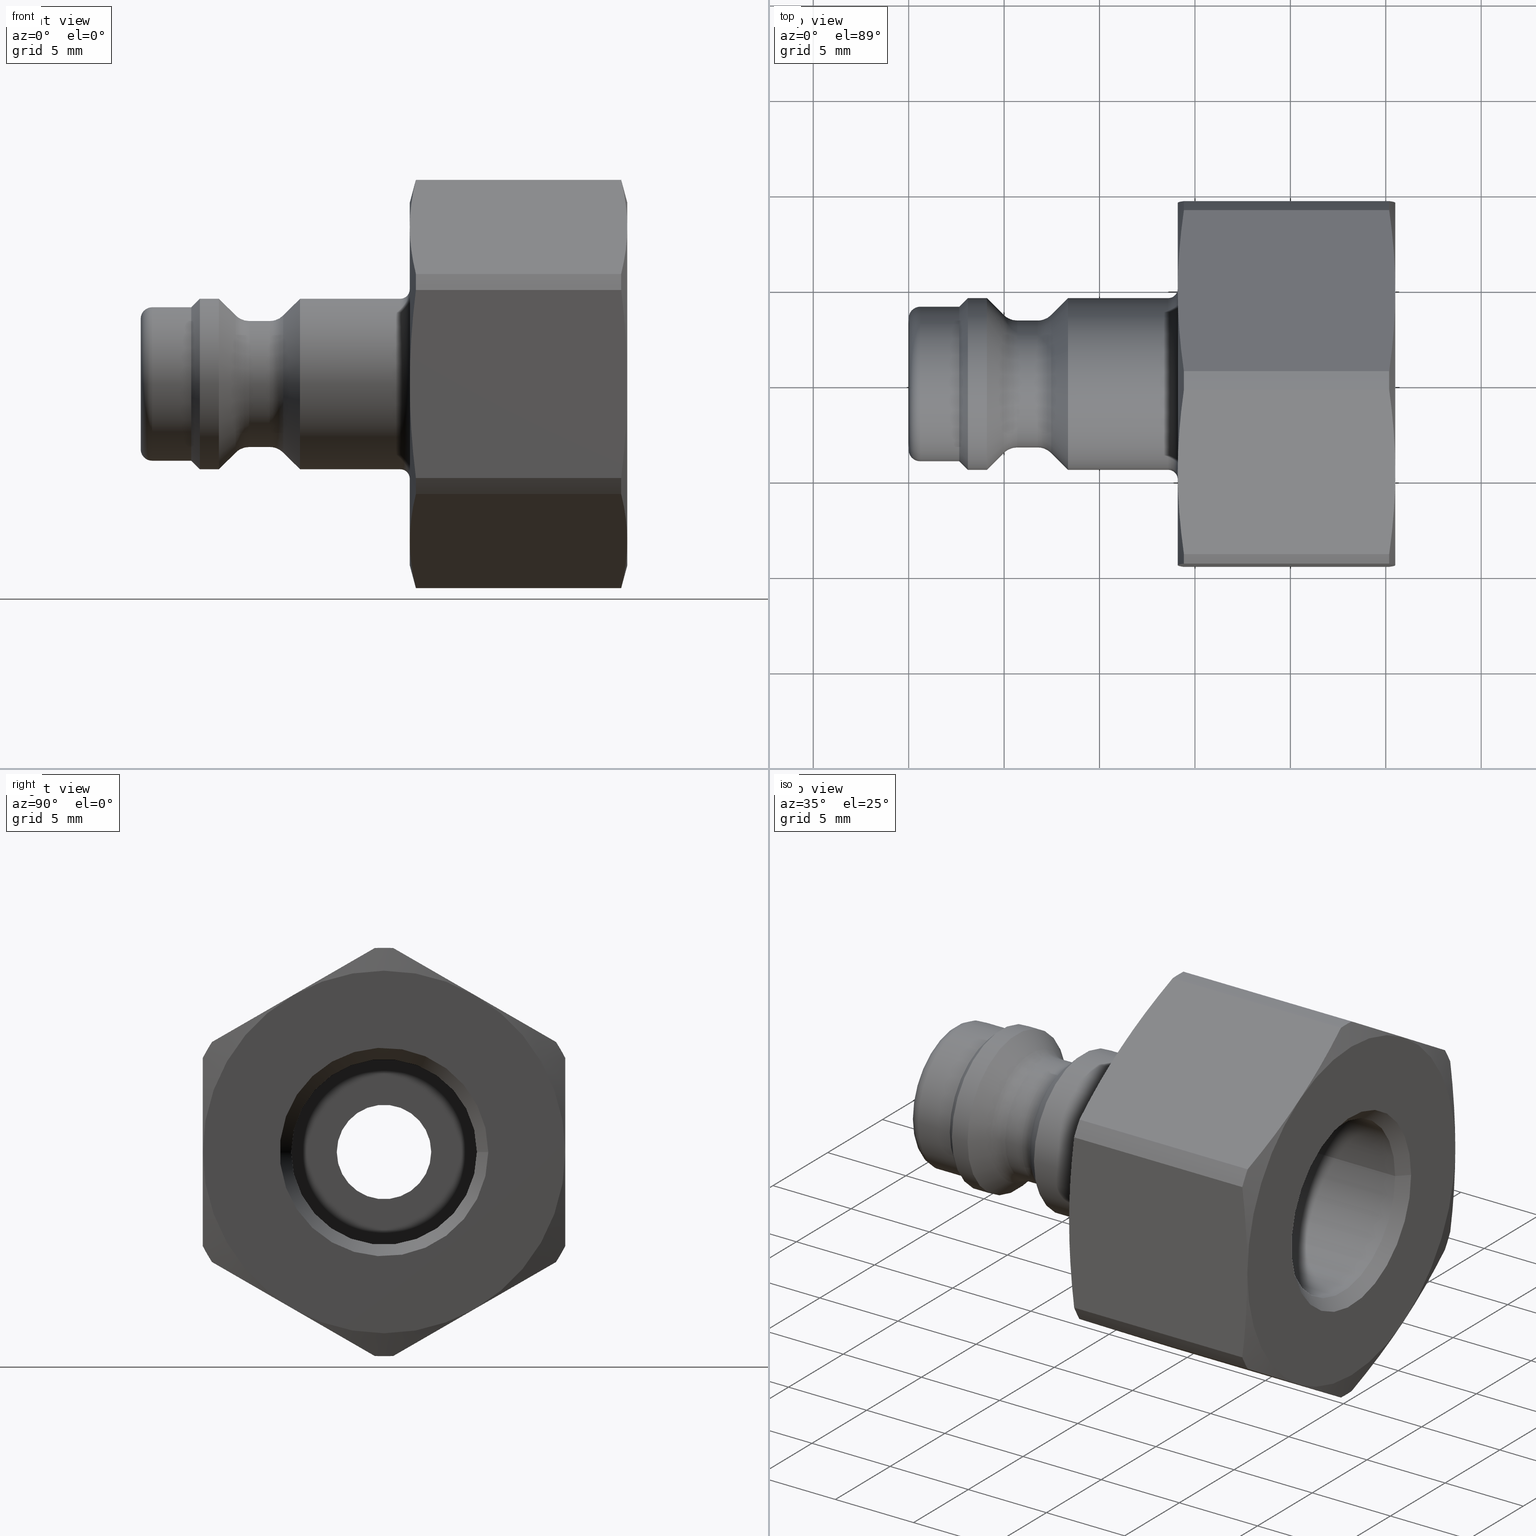
[diagram: canonical four-view strip — front | top / right | iso, engineering-drawing reading convention]
A machine part, canonical four-view strip (front | top / right | iso — engineering-drawing reading convention). The complete STEP part file that produces these views, byte-faithful:
ISO-10303-21;
HEADER;
/****************************************************************
 * Generated by software with PDElib inside                    *
 * PDElib Version v51a, created Wed 11/30/2011                  *
 * ITI Transcendata (http://www.transcendata.com/)              *
 ****************************************************************/
FILE_DESCRIPTION((''),'2;1');
FILE_NAME('J:\\003 3D Zeichnungen_step\\Serie 21\\21kaaw17mxx.stp','2014-10-16T09:42:42',('MS049480'),(''),'Autodesk Inventor 2013','Autodesk Inventor 2013','');
FILE_SCHEMA(('AUTOMOTIVE_DESIGN { 1 0 10303 214 1 1 1 1 }'));
ENDSEC;
DATA;
#5=APPLICATION_CONTEXT('automotive design');
#6=APPLICATION_PROTOCOL_DEFINITION('International Standard','automotive_design',2001,#5);
#7=PRODUCT_CONTEXT('',#5,'mechanical');
#8=PRODUCT('D112306','D112306',$,(#7));
#9=PRODUCT_RELATED_PRODUCT_CATEGORY('part',$,(#8));
#10=PRODUCT_DEFINITION_FORMATION('',$,#8);
#11=PRODUCT_DEFINITION_CONTEXT('part definition',#5,'design');
#12=PRODUCT_DEFINITION('',$,#10,#11);
#18=(NAMED_UNIT(*)PLANE_ANGLE_UNIT()SI_UNIT($,.RADIAN.));
#19=DIMENSIONAL_EXPONENTS(0.0,0.0,0.0,0.0,0.0,0.0,0.0);
#20=PLANE_ANGLE_MEASURE_WITH_UNIT(PLANE_ANGLE_MEASURE(0.0174532925),#18);
#24=(CONVERSION_BASED_UNIT('DEGREE',#20)NAMED_UNIT(#19)PLANE_ANGLE_UNIT());
#28=(NAMED_UNIT(*)SI_UNIT($,.STERADIAN.)SOLID_ANGLE_UNIT());
#32=(LENGTH_UNIT()NAMED_UNIT(*)SI_UNIT(.MILLI.,.METRE.));
#34=UNCERTAINTY_MEASURE_WITH_UNIT(LENGTH_MEASURE(0.01),#32,'DISTANCE_ACCURACY_VALUE','');
#36=(GEOMETRIC_REPRESENTATION_CONTEXT(3)GLOBAL_UNCERTAINTY_ASSIGNED_CONTEXT((#34))GLOBAL_UNIT_ASSIGNED_CONTEXT((#24,#28,#32))REPRESENTATION_CONTEXT('None','None'));
#37=AXIS2_PLACEMENT_3D('',#38,#39,#40);
#38=CARTESIAN_POINT('',(0.0,0.0,0.0));
#39=DIRECTION('',(0.0,0.0,1.0));
#40=DIRECTION('',(1.0,0.0,0.0));
#41=SHAPE_REPRESENTATION('',(#37),#36);
#42=PRODUCT_DEFINITION_SHAPE('','',#12);
#43=SHAPE_DEFINITION_REPRESENTATION(#42,#41);
#49=(NAMED_UNIT(*)PLANE_ANGLE_UNIT()SI_UNIT($,.RADIAN.));
#50=DIMENSIONAL_EXPONENTS(0.0,0.0,0.0,0.0,0.0,0.0,0.0);
#51=PLANE_ANGLE_MEASURE_WITH_UNIT(PLANE_ANGLE_MEASURE(0.0174532925),#49);
#55=(CONVERSION_BASED_UNIT('DEGREE',#51)NAMED_UNIT(#50)PLANE_ANGLE_UNIT());
#59=(NAMED_UNIT(*)SI_UNIT($,.STERADIAN.)SOLID_ANGLE_UNIT());
#63=(LENGTH_UNIT()NAMED_UNIT(*)SI_UNIT(.MILLI.,.METRE.));
#65=UNCERTAINTY_MEASURE_WITH_UNIT(LENGTH_MEASURE(0.000001),#63,'DISTANCE_ACCURACY_VALUE','');
#67=(GEOMETRIC_REPRESENTATION_CONTEXT(3)GLOBAL_UNCERTAINTY_ASSIGNED_CONTEXT((#65))GLOBAL_UNIT_ASSIGNED_CONTEXT((#55,#59,#63))REPRESENTATION_CONTEXT('','3D'));
#68=CARTESIAN_POINT('',(25.200000000000003,0.0,0.0));
#69=DIRECTION('',(1.0,0.0,0.0));
#70=DIRECTION('',(0.0,-1.0,0.0));
#71=AXIS2_PLACEMENT_3D('',#68,#69,#70);
#72=CONICAL_SURFACE('',#71,5.164,44.999999999999964);
#73=CARTESIAN_POINT('',(25.500000000000004,5.464,6.691470E-016));
#74=VERTEX_POINT('',#73);
#75=CARTESIAN_POINT('',(25.500000000000004,0.0,0.0));
#76=DIRECTION('',(1.0,0.0,0.0));
#77=DIRECTION('',(0.0,-1.0,0.0));
#78=AXIS2_PLACEMENT_3D('',#75,#76,#77);
#79=CIRCLE('',#78,5.464);
#80=EDGE_CURVE('',#74,#74,#79,.T.);
#81=ORIENTED_EDGE('',*,*,#80,.T.);
#82=EDGE_LOOP('',(#81));
#83=FACE_OUTER_BOUND('',#82,.T.);
#84=CARTESIAN_POINT('',(24.900000000000002,4.864,-5.956682E-016));
#85=VERTEX_POINT('',#84);
#86=CARTESIAN_POINT('',(24.900000000000002,0.0,0.0));
#87=DIRECTION('',(-1.0,0.0,0.0));
#88=DIRECTION('',(0.0,-1.0,0.0));
#89=AXIS2_PLACEMENT_3D('',#86,#87,#88);
#90=CIRCLE('',#89,4.864);
#91=EDGE_CURVE('',#85,#85,#90,.T.);
#92=ORIENTED_EDGE('',*,*,#91,.T.);
#93=EDGE_LOOP('',(#92));
#94=FACE_BOUND('',#93,.T.);
#95=ADVANCED_FACE('',(#83,#94),#72,.F.);
#96=CARTESIAN_POINT('',(25.500000000000004,7.182,0.0));
#97=DIRECTION('',(1.0,0.0,0.0));
#98=DIRECTION('',(0.0,0.0,-1.0));
#99=AXIS2_PLACEMENT_3D('',#96,#97,#98);
#100=PLANE('',#99);
#101=CARTESIAN_POINT('',(25.500000000000004,9.5,0.0));
#102=VERTEX_POINT('',#101);
#103=CARTESIAN_POINT('',(25.500000000000004,4.750000000000002,8.227241335952169));
#104=VERTEX_POINT('',#103);
#105=CARTESIAN_POINT('',(25.500000000000004,0.0,0.0));
#106=DIRECTION('',(1.0,0.0,0.0));
#107=DIRECTION('',(0.0,1.0,0.0));
#108=AXIS2_PLACEMENT_3D('',#105,#106,#107);
#109=CIRCLE('',#108,9.5);
#110=EDGE_CURVE('',#102,#104,#109,.T.);
#111=ORIENTED_EDGE('',*,*,#110,.T.);
#112=CARTESIAN_POINT('',(25.500000000000004,-4.749999999999998,8.22724133595217));
#113=VERTEX_POINT('',#112);
#114=CARTESIAN_POINT('',(25.500000000000004,0.0,0.0));
#115=DIRECTION('',(1.0,0.0,0.0));
#116=DIRECTION('',(0.0,1.0,0.0));
#117=AXIS2_PLACEMENT_3D('',#114,#115,#116);
#118=CIRCLE('',#117,9.5);
#119=EDGE_CURVE('',#104,#113,#118,.T.);
#120=ORIENTED_EDGE('',*,*,#119,.T.);
#121=CARTESIAN_POINT('',(25.500000000000004,-9.500000000000002,1.582068E-015));
#122=VERTEX_POINT('',#121);
#123=CARTESIAN_POINT('',(25.500000000000004,0.0,0.0));
#124=DIRECTION('',(1.0,0.0,0.0));
#125=DIRECTION('',(0.0,1.0,0.0));
#126=AXIS2_PLACEMENT_3D('',#123,#124,#125);
#127=CIRCLE('',#126,9.5);
#128=EDGE_CURVE('',#113,#122,#127,.T.);
#129=ORIENTED_EDGE('',*,*,#128,.T.);
#130=CARTESIAN_POINT('',(25.500000000000004,-4.750000000000005,-8.227241335952165));
#131=VERTEX_POINT('',#130);
#132=CARTESIAN_POINT('',(25.500000000000004,0.0,0.0));
#133=DIRECTION('',(1.0,0.0,0.0));
#134=DIRECTION('',(0.0,1.0,0.0));
#135=AXIS2_PLACEMENT_3D('',#132,#133,#134);
#136=CIRCLE('',#135,9.5);
#137=EDGE_CURVE('',#122,#131,#136,.T.);
#138=ORIENTED_EDGE('',*,*,#137,.T.);
#139=CARTESIAN_POINT('',(25.500000000000004,4.749999999999993,-8.227241335952172));
#140=VERTEX_POINT('',#139);
#141=CARTESIAN_POINT('',(25.500000000000004,0.0,0.0));
#142=DIRECTION('',(1.0,0.0,0.0));
#143=DIRECTION('',(0.0,1.0,0.0));
#144=AXIS2_PLACEMENT_3D('',#141,#142,#143);
#145=CIRCLE('',#144,9.5);
#146=EDGE_CURVE('',#131,#140,#145,.T.);
#147=ORIENTED_EDGE('',*,*,#146,.T.);
#148=CARTESIAN_POINT('',(25.500000000000004,0.0,0.0));
#149=DIRECTION('',(1.0,0.0,0.0));
#150=DIRECTION('',(0.0,1.0,0.0));
#151=AXIS2_PLACEMENT_3D('',#148,#149,#150);
#152=CIRCLE('',#151,9.5);
#153=EDGE_CURVE('',#140,#102,#152,.T.);
#154=ORIENTED_EDGE('',*,*,#153,.T.);
#155=EDGE_LOOP('',(#111,#120,#129,#138,#147,#154));
#156=FACE_OUTER_BOUND('',#155,.T.);
#157=ORIENTED_EDGE('',*,*,#80,.F.);
#158=EDGE_LOOP('',(#157));
#159=FACE_BOUND('',#158,.T.);
#160=ADVANCED_FACE('',(#156,#159),#100,.T.);
#161=CARTESIAN_POINT('',(21.000000000000007,0.0,0.0));
#162=DIRECTION('',(1.0,0.0,0.0));
#163=DIRECTION('',(0.0,1.0,0.0));
#164=AXIS2_PLACEMENT_3D('',#161,#162,#163);
#165=CYLINDRICAL_SURFACE('',#164,4.864);
#166=CARTESIAN_POINT('',(16.500000000000004,4.863999999999999,0.0));
#167=VERTEX_POINT('',#166);
#168=CARTESIAN_POINT('',(16.500000000000004,0.0,0.0));
#169=DIRECTION('',(1.0,0.0,0.0));
#170=DIRECTION('',(0.0,1.0,0.0));
#171=AXIS2_PLACEMENT_3D('',#168,#169,#170);
#172=CIRCLE('',#171,4.863999999999999);
#173=EDGE_CURVE('',#167,#167,#172,.T.);
#174=ORIENTED_EDGE('',*,*,#173,.F.);
#175=EDGE_LOOP('',(#174));
#176=FACE_OUTER_BOUND('',#175,.T.);
#177=ORIENTED_EDGE('',*,*,#91,.F.);
#178=EDGE_LOOP('',(#177));
#179=FACE_BOUND('',#178,.T.);
#180=ADVANCED_FACE('',(#176,#179),#165,.F.);
#181=CARTESIAN_POINT('',(5.689213562373095,0.0,0.0));
#182=DIRECTION('',(1.0,0.0,0.0));
#183=DIRECTION('',(0.0,0.0,-1.0));
#184=AXIS2_PLACEMENT_3D('',#181,#182,#183);
#185=TOROIDAL_SURFACE('',#184,4.325,1.0);
#186=CARTESIAN_POINT('',(4.982106781186548,3.617893218813451,-1.232595E-031));
#187=VERTEX_POINT('',#186);
#188=CARTESIAN_POINT('',(4.982106781186548,0.0,-4.430641E-016));
#189=DIRECTION('',(1.0,0.0,0.0));
#190=DIRECTION('',(0.0,-1.0,0.0));
#191=AXIS2_PLACEMENT_3D('',#188,#189,#190);
#192=CIRCLE('',#191,3.617893218813451);
#193=EDGE_CURVE('',#187,#187,#192,.T.);
#194=ORIENTED_EDGE('',*,*,#193,.T.);
#195=EDGE_LOOP('',(#194));
#196=FACE_OUTER_BOUND('',#195,.T.);
#197=CARTESIAN_POINT('',(5.689213562373095,3.325,-8.143901E-016));
#198=VERTEX_POINT('',#197);
#199=CARTESIAN_POINT('',(5.689213562373095,0.0,0.0));
#200=DIRECTION('',(-1.0,0.0,0.0));
#201=DIRECTION('',(0.0,-1.0,0.0));
#202=AXIS2_PLACEMENT_3D('',#199,#200,#201);
#203=CIRCLE('',#202,3.325);
#204=EDGE_CURVE('',#198,#198,#203,.T.);
#205=ORIENTED_EDGE('',*,*,#204,.T.);
#206=EDGE_LOOP('',(#205));
#207=FACE_BOUND('',#206,.T.);
#208=ADVANCED_FACE('',(#196,#207),#185,.F.);
#209=CARTESIAN_POINT('',(6.225000000000001,0.0,0.0));
#210=DIRECTION('',(1.0,0.0,0.0));
#211=DIRECTION('',(0.0,1.0,0.0));
#212=AXIS2_PLACEMENT_3D('',#209,#210,#211);
#213=CYLINDRICAL_SURFACE('',#212,3.325);
#214=CARTESIAN_POINT('',(6.760786437626905,3.325,0.0));
#215=VERTEX_POINT('',#214);
#216=CARTESIAN_POINT('',(6.760786437626905,0.0,0.0));
#217=DIRECTION('',(1.0,0.0,0.0));
#218=DIRECTION('',(0.0,-1.0,0.0));
#219=AXIS2_PLACEMENT_3D('',#216,#217,#218);
#220=CIRCLE('',#219,3.325);
#221=EDGE_CURVE('',#215,#215,#220,.T.);
#222=ORIENTED_EDGE('',*,*,#221,.F.);
#223=EDGE_LOOP('',(#222));
#224=FACE_OUTER_BOUND('',#223,.T.);
#225=ORIENTED_EDGE('',*,*,#204,.F.);
#226=EDGE_LOOP('',(#225));
#227=FACE_BOUND('',#226,.T.);
#228=ADVANCED_FACE('',(#224,#227),#213,.T.);
#229=CARTESIAN_POINT('',(4.6875,0.0,0.0));
#230=DIRECTION('',(-1.0,0.0,0.0));
#231=DIRECTION('',(0.0,1.0,0.0));
#232=AXIS2_PLACEMENT_3D('',#229,#230,#231);
#233=CONICAL_SURFACE('',#232,3.9125,44.999999999999979);
#234=CARTESIAN_POINT('',(4.1,4.5,0.0));
#235=VERTEX_POINT('',#234);
#236=CARTESIAN_POINT('',(4.1,0.0,0.0));
#237=DIRECTION('',(1.0,0.0,0.0));
#238=DIRECTION('',(0.0,1.0,0.0));
#239=AXIS2_PLACEMENT_3D('',#236,#237,#238);
#240=CIRCLE('',#239,4.5);
#241=EDGE_CURVE('',#235,#235,#240,.T.);
#242=ORIENTED_EDGE('',*,*,#241,.T.);
#243=EDGE_LOOP('',(#242));
#244=FACE_OUTER_BOUND('',#243,.T.);
#245=ORIENTED_EDGE('',*,*,#193,.F.);
#246=EDGE_LOOP('',(#245));
#247=FACE_BOUND('',#246,.T.);
#248=ADVANCED_FACE('',(#244,#247),#233,.T.);
#249=CARTESIAN_POINT('',(6.760786437626905,0.0,0.0));
#250=DIRECTION('',(1.0,0.0,0.0));
#251=DIRECTION('',(0.0,0.0,-1.0));
#252=AXIS2_PLACEMENT_3D('',#249,#250,#251);
#253=TOROIDAL_SURFACE('',#252,4.325,1.0);
#254=ORIENTED_EDGE('',*,*,#221,.T.);
#255=EDGE_LOOP('',(#254));
#256=FACE_OUTER_BOUND('',#255,.T.);
#257=CARTESIAN_POINT('',(7.467893218813453,3.617893218813453,-8.861283E-016));
#258=VERTEX_POINT('',#257);
#259=CARTESIAN_POINT('',(7.467893218813453,0.0,-4.430641E-016));
#260=DIRECTION('',(-1.0,0.0,0.0));
#261=DIRECTION('',(0.0,-1.0,0.0));
#262=AXIS2_PLACEMENT_3D('',#259,#260,#261);
#263=CIRCLE('',#262,3.617893218813453);
#264=EDGE_CURVE('',#258,#258,#263,.T.);
#265=ORIENTED_EDGE('',*,*,#264,.T.);
#266=EDGE_LOOP('',(#265));
#267=FACE_BOUND('',#266,.T.);
#268=ADVANCED_FACE('',(#256,#267),#253,.F.);
#269=CARTESIAN_POINT('',(7.762499999999999,0.0,0.0));
#270=DIRECTION('',(1.0,0.0,0.0));
#271=DIRECTION('',(0.0,1.0,0.0));
#272=AXIS2_PLACEMENT_3D('',#269,#270,#271);
#273=CONICAL_SURFACE('',#272,3.9125,45.000000000000057);
#274=CARTESIAN_POINT('',(8.349999999999998,4.5,0.0));
#275=VERTEX_POINT('',#274);
#276=CARTESIAN_POINT('',(8.349999999999998,0.0,0.0));
#277=DIRECTION('',(1.0,0.0,0.0));
#278=DIRECTION('',(0.0,1.0,0.0));
#279=AXIS2_PLACEMENT_3D('',#276,#277,#278);
#280=CIRCLE('',#279,4.5);
#281=EDGE_CURVE('',#275,#275,#280,.T.);
#282=ORIENTED_EDGE('',*,*,#281,.F.);
#283=EDGE_LOOP('',(#282));
#284=FACE_OUTER_BOUND('',#283,.T.);
#285=ORIENTED_EDGE('',*,*,#264,.F.);
#286=EDGE_LOOP('',(#285));
#287=FACE_BOUND('',#286,.T.);
#288=ADVANCED_FACE('',(#284,#287),#273,.T.);
#289=CARTESIAN_POINT('',(0.6,0.0,0.0));
#290=DIRECTION('',(1.0,0.0,0.0));
#291=DIRECTION('',(0.0,0.0,-1.0));
#292=AXIS2_PLACEMENT_3D('',#289,#290,#291);
#293=TOROIDAL_SURFACE('',#292,3.45,0.6);
#294=CARTESIAN_POINT('',(0.0,3.45,0.0));
#295=VERTEX_POINT('',#294);
#296=CARTESIAN_POINT('',(0.0,0.0,0.0));
#297=DIRECTION('',(1.0,0.0,0.0));
#298=DIRECTION('',(0.0,-1.0,0.0));
#299=AXIS2_PLACEMENT_3D('',#296,#297,#298);
#300=CIRCLE('',#299,3.45);
#301=EDGE_CURVE('',#295,#295,#300,.T.);
#302=ORIENTED_EDGE('',*,*,#301,.T.);
#303=EDGE_LOOP('',(#302));
#304=FACE_OUTER_BOUND('',#303,.T.);
#305=CARTESIAN_POINT('',(0.6,4.050000000000001,-9.919639E-016));
#306=VERTEX_POINT('',#305);
#307=CARTESIAN_POINT('',(0.6,0.0,0.0));
#308=DIRECTION('',(-1.0,0.0,0.0));
#309=DIRECTION('',(0.0,-1.0,0.0));
#310=AXIS2_PLACEMENT_3D('',#307,#308,#309);
#311=CIRCLE('',#310,4.050000000000001);
#312=EDGE_CURVE('',#306,#306,#311,.T.);
#313=ORIENTED_EDGE('',*,*,#312,.T.);
#314=EDGE_LOOP('',(#313));
#315=FACE_BOUND('',#314,.T.);
#316=ADVANCED_FACE('',(#304,#315),#293,.T.);
#317=CARTESIAN_POINT('',(1.325,0.0,0.0));
#318=DIRECTION('',(1.0,0.0,0.0));
#319=DIRECTION('',(0.0,1.0,0.0));
#320=AXIS2_PLACEMENT_3D('',#317,#318,#319);
#321=CYLINDRICAL_SURFACE('',#320,4.050000000000001);
#322=CARTESIAN_POINT('',(2.65,4.050000000000001,0.0));
#323=VERTEX_POINT('',#322);
#324=CARTESIAN_POINT('',(2.65,0.0,0.0));
#325=DIRECTION('',(1.0,0.0,0.0));
#326=DIRECTION('',(0.0,1.0,0.0));
#327=AXIS2_PLACEMENT_3D('',#324,#325,#326);
#328=CIRCLE('',#327,4.050000000000001);
#329=EDGE_CURVE('',#323,#323,#328,.T.);
#330=ORIENTED_EDGE('',*,*,#329,.F.);
#331=EDGE_LOOP('',(#330));
#332=FACE_OUTER_BOUND('',#331,.T.);
#333=ORIENTED_EDGE('',*,*,#312,.F.);
#334=EDGE_LOOP('',(#333));
#335=FACE_BOUND('',#334,.T.);
#336=ADVANCED_FACE('',(#332,#335),#321,.T.);
#337=CARTESIAN_POINT('',(0.0,3.262499999999999,0.0));
#338=DIRECTION('',(-1.0,0.0,0.0));
#339=DIRECTION('',(0.0,0.0,1.0));
#340=AXIS2_PLACEMENT_3D('',#337,#338,#339);
#341=PLANE('',#340);
#342=ORIENTED_EDGE('',*,*,#301,.F.);
#343=EDGE_LOOP('',(#342));
#344=FACE_OUTER_BOUND('',#343,.T.);
#345=CARTESIAN_POINT('',(0.0,2.474999999999999,0.0));
#346=VERTEX_POINT('',#345);
#347=CARTESIAN_POINT('',(0.0,0.0,0.0));
#348=DIRECTION('',(1.0,0.0,0.0));
#349=DIRECTION('',(0.0,1.0,0.0));
#350=AXIS2_PLACEMENT_3D('',#347,#348,#349);
#351=CIRCLE('',#350,2.474999999999999);
#352=EDGE_CURVE('',#346,#346,#351,.T.);
#353=ORIENTED_EDGE('',*,*,#352,.T.);
#354=EDGE_LOOP('',(#353));
#355=FACE_BOUND('',#354,.T.);
#356=ADVANCED_FACE('',(#344,#355),#341,.T.);
#357=CARTESIAN_POINT('',(13.600000000000001,0.0,0.0));
#358=DIRECTION('',(1.0,0.0,0.0));
#359=DIRECTION('',(0.0,0.0,-1.0));
#360=AXIS2_PLACEMENT_3D('',#357,#358,#359);
#361=TOROIDAL_SURFACE('',#360,5.0,0.5);
#362=CARTESIAN_POINT('',(13.600000000000001,4.5,0.0));
#363=VERTEX_POINT('',#362);
#364=CARTESIAN_POINT('',(13.600000000000001,0.0,0.0));
#365=DIRECTION('',(1.0,0.0,0.0));
#366=DIRECTION('',(0.0,-1.0,0.0));
#367=AXIS2_PLACEMENT_3D('',#364,#365,#366);
#368=CIRCLE('',#367,4.5);
#369=EDGE_CURVE('',#363,#363,#368,.T.);
#370=ORIENTED_EDGE('',*,*,#369,.T.);
#371=EDGE_LOOP('',(#370));
#372=FACE_OUTER_BOUND('',#371,.T.);
#373=CARTESIAN_POINT('',(14.100000000000001,5.0,-1.224647E-015));
#374=VERTEX_POINT('',#373);
#375=CARTESIAN_POINT('',(14.100000000000001,0.0,0.0));
#376=DIRECTION('',(-1.0,0.0,0.0));
#377=DIRECTION('',(0.0,-1.0,0.0));
#378=AXIS2_PLACEMENT_3D('',#375,#376,#377);
#379=CIRCLE('',#378,5.0);
#380=EDGE_CURVE('',#374,#374,#379,.T.);
#381=ORIENTED_EDGE('',*,*,#380,.T.);
#382=EDGE_LOOP('',(#381));
#383=FACE_BOUND('',#382,.T.);
#384=ADVANCED_FACE('',(#372,#383),#361,.F.);
#385=CARTESIAN_POINT('',(11.225000000000001,0.0,0.0));
#386=DIRECTION('',(1.0,0.0,0.0));
#387=DIRECTION('',(0.0,1.0,0.0));
#388=AXIS2_PLACEMENT_3D('',#385,#386,#387);
#389=CYLINDRICAL_SURFACE('',#388,4.5);
#390=ORIENTED_EDGE('',*,*,#281,.T.);
#391=EDGE_LOOP('',(#390));
#392=FACE_OUTER_BOUND('',#391,.T.);
#393=ORIENTED_EDGE('',*,*,#369,.F.);
#394=EDGE_LOOP('',(#393));
#395=FACE_BOUND('',#394,.T.);
#396=ADVANCED_FACE('',(#392,#395),#389,.T.);
#397=CARTESIAN_POINT('',(14.100000000000001,7.000000000000001,0.0));
#398=DIRECTION('',(-1.0,0.0,0.0));
#399=DIRECTION('',(0.0,0.0,1.0));
#400=AXIS2_PLACEMENT_3D('',#397,#398,#399);
#401=PLANE('',#400);
#402=CARTESIAN_POINT('',(14.100000000000001,9.5,0.0));
#403=VERTEX_POINT('',#402);
#404=CARTESIAN_POINT('',(14.1,4.750000000000002,8.227241335952167));
#405=VERTEX_POINT('',#404);
#406=CARTESIAN_POINT('',(14.100000000000001,0.0,0.0));
#407=DIRECTION('',(1.0,0.0,0.0));
#408=DIRECTION('',(0.0,1.0,0.0));
#409=AXIS2_PLACEMENT_3D('',#406,#407,#408);
#410=CIRCLE('',#409,9.5);
#411=EDGE_CURVE('',#403,#405,#410,.T.);
#412=ORIENTED_EDGE('',*,*,#411,.F.);
#413=CARTESIAN_POINT('',(14.1,4.749999999999993,-8.227241335952172));
#414=VERTEX_POINT('',#413);
#415=CARTESIAN_POINT('',(14.100000000000001,0.0,0.0));
#416=DIRECTION('',(1.0,0.0,0.0));
#417=DIRECTION('',(0.0,1.0,0.0));
#418=AXIS2_PLACEMENT_3D('',#415,#416,#417);
#419=CIRCLE('',#418,9.5);
#420=EDGE_CURVE('',#414,#403,#419,.T.);
#421=ORIENTED_EDGE('',*,*,#420,.F.);
#422=CARTESIAN_POINT('',(14.1,-4.750000000000004,-8.227241335952165));
#423=VERTEX_POINT('',#422);
#424=CARTESIAN_POINT('',(14.100000000000001,0.0,0.0));
#425=DIRECTION('',(1.0,0.0,0.0));
#426=DIRECTION('',(0.0,1.0,0.0));
#427=AXIS2_PLACEMENT_3D('',#424,#425,#426);
#428=CIRCLE('',#427,9.5);
#429=EDGE_CURVE('',#423,#414,#428,.T.);
#430=ORIENTED_EDGE('',*,*,#429,.F.);
#431=CARTESIAN_POINT('',(14.1,-9.5,1.582068E-015));
#432=VERTEX_POINT('',#431);
#433=CARTESIAN_POINT('',(14.100000000000001,0.0,0.0));
#434=DIRECTION('',(1.0,0.0,0.0));
#435=DIRECTION('',(0.0,1.0,0.0));
#436=AXIS2_PLACEMENT_3D('',#433,#434,#435);
#437=CIRCLE('',#436,9.5);
#438=EDGE_CURVE('',#432,#423,#437,.T.);
#439=ORIENTED_EDGE('',*,*,#438,.F.);
#440=CARTESIAN_POINT('',(14.1,-4.749999999999998,8.227241335952169));
#441=VERTEX_POINT('',#440);
#442=CARTESIAN_POINT('',(14.100000000000001,0.0,0.0));
#443=DIRECTION('',(1.0,0.0,0.0));
#444=DIRECTION('',(0.0,1.0,0.0));
#445=AXIS2_PLACEMENT_3D('',#442,#443,#444);
#446=CIRCLE('',#445,9.5);
#447=EDGE_CURVE('',#441,#432,#446,.T.);
#448=ORIENTED_EDGE('',*,*,#447,.F.);
#449=CARTESIAN_POINT('',(14.100000000000001,0.0,0.0));
#450=DIRECTION('',(1.0,0.0,0.0));
#451=DIRECTION('',(0.0,1.0,0.0));
#452=AXIS2_PLACEMENT_3D('',#449,#450,#451);
#453=CIRCLE('',#452,9.5);
#454=EDGE_CURVE('',#405,#441,#453,.T.);
#455=ORIENTED_EDGE('',*,*,#454,.F.);
#456=EDGE_LOOP('',(#412,#421,#430,#439,#448,#455));
#457=FACE_OUTER_BOUND('',#456,.T.);
#458=ORIENTED_EDGE('',*,*,#380,.F.);
#459=EDGE_LOOP('',(#458));
#460=FACE_BOUND('',#459,.T.);
#461=ADVANCED_FACE('',(#457,#460),#401,.T.);
#462=CARTESIAN_POINT('',(27.350283426595773,4.749999999999995,-8.227241335952174));
#463=DIRECTION('',(1.448150E-016,-0.499999999999999,0.866025403784439));
#464=DIRECTION('',(8.038848E-033,-0.866025403784439,-0.499999999999999));
#465=AXIS2_PLACEMENT_3D('',#462,#463,#464);
#466=PLANE('',#465);
#467=CARTESIAN_POINT('',(14.421539030917344,9.013801121065562,-5.765534610933942));
#468=VERTEX_POINT('',#467);
#469=CARTESIAN_POINT('',(14.421539030917348,9.013801121065551,-5.765534610933949));
#470=CARTESIAN_POINT('',(14.100000000000009,6.75525300248137,-7.069507975176247));
#471=CARTESIAN_POINT('',(14.100000000000003,4.749999999999993,-8.227241335952172));
#479=(BOUNDED_CURVE()B_SPLINE_CURVE(2,(#469,#470,#471),.UNSPECIFIED.,.F.,.U.)B_SPLINE_CURVE_WITH_KNOTS((3,3),(0.0,0.493628243022413),.UNSPECIFIED.)CURVE()GEOMETRIC_REPRESENTATION_ITEM()RATIONAL_B_SPLINE_CURVE((1.0,1.031095482841852,1.0))REPRESENTATION_ITEM(''));
#480=EDGE_CURVE('',#468,#414,#479,.T.);
#481=ORIENTED_EDGE('',*,*,#480,.F.);
#482=CARTESIAN_POINT('',(25.178460969082657,9.013801121065562,-5.765534610933943));
#483=VERTEX_POINT('',#482);
#484=CARTESIAN_POINT('',(25.178460969082657,9.013801121065562,-5.765534610933942));
#485=DIRECTION('',(-1.0,0.0,0.0));
#486=VECTOR('',#485,10.756921938165313);
#487=LINE('',#484,#486);
#488=EDGE_CURVE('',#483,#468,#487,.T.);
#489=ORIENTED_EDGE('',*,*,#488,.F.);
#490=CARTESIAN_POINT('',(25.5,4.749999999999995,-8.227241335952174));
#491=CARTESIAN_POINT('',(25.5,6.755253002481345,-7.069507975176263));
#492=CARTESIAN_POINT('',(25.178460969082657,9.013801121065542,-5.765534610933956));
#500=(BOUNDED_CURVE()B_SPLINE_CURVE(2,(#490,#491,#492),.UNSPECIFIED.,.F.,.U.)B_SPLINE_CURVE_WITH_KNOTS((3,3),(0.493628243022412,0.987256486044823),.UNSPECIFIED.)CURVE()GEOMETRIC_REPRESENTATION_ITEM()RATIONAL_B_SPLINE_CURVE((1.0,1.03109548284183,1.0))REPRESENTATION_ITEM(''));
#501=EDGE_CURVE('',#140,#483,#500,.T.);
#502=ORIENTED_EDGE('',*,*,#501,.F.);
#503=CARTESIAN_POINT('',(25.178460969082657,0.486198878934424,-10.688948060970402));
#504=VERTEX_POINT('',#503);
#505=CARTESIAN_POINT('',(25.178460969082657,0.486198878934444,-10.688948060970391));
#506=CARTESIAN_POINT('',(25.5,2.744746997518635,-9.384974696728088));
#507=CARTESIAN_POINT('',(25.5,4.749999999999995,-8.227241335952174));
#515=(BOUNDED_CURVE()B_SPLINE_CURVE(2,(#505,#506,#507),.UNSPECIFIED.,.F.,.U.)B_SPLINE_CURVE_WITH_KNOTS((3,3),(0.0,0.493628243022412),.UNSPECIFIED.)CURVE()GEOMETRIC_REPRESENTATION_ITEM()RATIONAL_B_SPLINE_CURVE((1.0,1.031095482841819,1.0))REPRESENTATION_ITEM(''));
#516=EDGE_CURVE('',#504,#140,#515,.T.);
#517=ORIENTED_EDGE('',*,*,#516,.F.);
#518=CARTESIAN_POINT('',(14.421539030917344,0.486198878934425,-10.6889480609704));
#519=VERTEX_POINT('',#518);
#520=CARTESIAN_POINT('',(14.421539030917344,0.486198878934425,-10.6889480609704));
#521=DIRECTION('',(1.0,0.0,0.0));
#522=VECTOR('',#521,10.756921938165313);
#523=LINE('',#520,#522);
#524=EDGE_CURVE('',#519,#504,#523,.T.);
#525=ORIENTED_EDGE('',*,*,#524,.F.);
#526=CARTESIAN_POINT('',(14.100000000000003,4.749999999999993,-8.227241335952172));
#527=CARTESIAN_POINT('',(14.1,2.744746997518624,-9.384974696728092));
#528=CARTESIAN_POINT('',(14.421539030917348,0.486198878934435,-10.688948060970397));
#536=(BOUNDED_CURVE()B_SPLINE_CURVE(2,(#526,#527,#528),.UNSPECIFIED.,.F.,.U.)B_SPLINE_CURVE_WITH_KNOTS((3,3),(0.493628243022413,0.987256486044826),.UNSPECIFIED.)CURVE()GEOMETRIC_REPRESENTATION_ITEM()RATIONAL_B_SPLINE_CURVE((1.0,1.031095482841857,1.0))REPRESENTATION_ITEM(''));
#537=EDGE_CURVE('',#414,#519,#536,.T.);
#538=ORIENTED_EDGE('',*,*,#537,.F.);
#539=EDGE_LOOP('',(#481,#489,#502,#517,#525,#538));
#540=FACE_OUTER_BOUND('',#539,.T.);
#541=ADVANCED_FACE('',(#540),#466,.F.);
#542=CARTESIAN_POINT('',(27.350283426595773,-4.750000000000005,-8.227241335952165));
#543=DIRECTION('',(1.448150E-016,0.5,0.866025403784438));
#544=DIRECTION('',(0.0,-0.866025403784438,0.5));
#545=AXIS2_PLACEMENT_3D('',#542,#543,#544);
#546=PLANE('',#545);
#547=CARTESIAN_POINT('',(14.421539030917344,-0.48619887893444,-10.6889480609704));
#548=VERTEX_POINT('',#547);
#549=CARTESIAN_POINT('',(14.421539030917348,-0.486198878934446,-10.688948060970393));
#550=CARTESIAN_POINT('',(14.100000000000001,-2.744746997518692,-9.384974696728056));
#551=CARTESIAN_POINT('',(14.100000000000001,-4.750000000000004,-8.227241335952163));
#559=(BOUNDED_CURVE()B_SPLINE_CURVE(2,(#549,#550,#551),.UNSPECIFIED.,.F.,.U.)B_SPLINE_CURVE_WITH_KNOTS((3,3),(0.0,0.493628243022413),.UNSPECIFIED.)CURVE()GEOMETRIC_REPRESENTATION_ITEM()RATIONAL_B_SPLINE_CURVE((1.0,1.031095482841863,1.0))REPRESENTATION_ITEM(''));
#560=EDGE_CURVE('',#548,#423,#559,.T.);
#561=ORIENTED_EDGE('',*,*,#560,.F.);
#562=CARTESIAN_POINT('',(25.178460969082657,-0.48619887893444,-10.6889480609704));
#563=VERTEX_POINT('',#562);
#564=CARTESIAN_POINT('',(25.178460969082657,-0.486198878934442,-10.688948060970398));
#565=DIRECTION('',(-1.0,0.0,0.0));
#566=VECTOR('',#565,10.756921938165313);
#567=LINE('',#564,#566);
#568=EDGE_CURVE('',#563,#548,#567,.T.);
#569=ORIENTED_EDGE('',*,*,#568,.F.);
#570=CARTESIAN_POINT('',(25.5,-4.750000000000004,-8.227241335952165));
#571=CARTESIAN_POINT('',(25.5,-2.744746997518668,-9.384974696728072));
#572=CARTESIAN_POINT('',(25.178460969082657,-0.486198878934453,-10.688948060970393));
#580=(BOUNDED_CURVE()B_SPLINE_CURVE(2,(#570,#571,#572),.UNSPECIFIED.,.F.,.U.)B_SPLINE_CURVE_WITH_KNOTS((3,3),(0.493628243022412,0.987256486044825),.UNSPECIFIED.)CURVE()GEOMETRIC_REPRESENTATION_ITEM()RATIONAL_B_SPLINE_CURVE((1.0,1.031095482841828,1.0))REPRESENTATION_ITEM(''));
#581=EDGE_CURVE('',#131,#563,#580,.T.);
#582=ORIENTED_EDGE('',*,*,#581,.F.);
#583=CARTESIAN_POINT('',(25.178460969082657,-9.013801121065569,-5.765534610933932));
#584=VERTEX_POINT('',#583);
#585=CARTESIAN_POINT('',(25.178460969082657,-9.013801121065555,-5.765534610933939));
#586=CARTESIAN_POINT('',(25.5,-6.755253002481332,-7.069507975176265));
#587=CARTESIAN_POINT('',(25.5,-4.750000000000004,-8.227241335952165));
#595=(BOUNDED_CURVE()B_SPLINE_CURVE(2,(#585,#586,#587),.UNSPECIFIED.,.F.,.U.)B_SPLINE_CURVE_WITH_KNOTS((3,3),(0.0,0.493628243022412),.UNSPECIFIED.)CURVE()GEOMETRIC_REPRESENTATION_ITEM()RATIONAL_B_SPLINE_CURVE((1.0,1.031095482841905,1.0))REPRESENTATION_ITEM(''));
#596=EDGE_CURVE('',#584,#131,#595,.T.);
#597=ORIENTED_EDGE('',*,*,#596,.F.);
#598=CARTESIAN_POINT('',(14.421539030917344,-9.013801121065567,-5.76553461093393));
#599=VERTEX_POINT('',#598);
#600=CARTESIAN_POINT('',(14.421539030917344,-9.013801121065567,-5.765534610933932));
#601=DIRECTION('',(1.0,0.0,0.0));
#602=VECTOR('',#601,10.756921938165313);
#603=LINE('',#600,#602);
#604=EDGE_CURVE('',#599,#584,#603,.T.);
#605=ORIENTED_EDGE('',*,*,#604,.F.);
#606=CARTESIAN_POINT('',(14.100000000000001,-4.750000000000004,-8.227241335952163));
#607=CARTESIAN_POINT('',(14.100000000000001,-6.755253002481323,-7.069507975176267));
#608=CARTESIAN_POINT('',(14.421539030917348,-9.013801121065562,-5.765534610933933));
#616=(BOUNDED_CURVE()B_SPLINE_CURVE(2,(#606,#607,#608),.UNSPECIFIED.,.F.,.U.)B_SPLINE_CURVE_WITH_KNOTS((3,3),(0.493628243022413,0.987256486044826),.UNSPECIFIED.)CURVE()GEOMETRIC_REPRESENTATION_ITEM()RATIONAL_B_SPLINE_CURVE((1.0,1.031095482841888,1.0))REPRESENTATION_ITEM(''));
#617=EDGE_CURVE('',#423,#599,#616,.T.);
#618=ORIENTED_EDGE('',*,*,#617,.F.);
#619=EDGE_LOOP('',(#561,#569,#582,#597,#605,#618));
#620=FACE_OUTER_BOUND('',#619,.T.);
#621=ADVANCED_FACE('',(#620),#546,.F.);
#622=CARTESIAN_POINT('',(27.350283426595773,-9.500000000000002,1.665335E-015));
#623=DIRECTION('',(0.0,1.0,0.0));
#624=DIRECTION('',(0.0,0.0,1.0));
#625=AXIS2_PLACEMENT_3D('',#622,#623,#624);
#626=PLANE('',#625);
#627=CARTESIAN_POINT('',(14.421539030917344,-9.5,-4.923413450036463));
#628=VERTEX_POINT('',#627);
#629=CARTESIAN_POINT('',(14.421539030917348,-9.5,-4.923413450036455));
#630=CARTESIAN_POINT('',(14.100000000000003,-9.5,-2.315466721551815));
#631=CARTESIAN_POINT('',(14.100000000000001,-9.5,1.582068E-015));
#639=(BOUNDED_CURVE()B_SPLINE_CURVE(2,(#629,#630,#631),.UNSPECIFIED.,.F.,.U.)B_SPLINE_CURVE_WITH_KNOTS((3,3),(0.0,0.493628243022413),.UNSPECIFIED.)CURVE()GEOMETRIC_REPRESENTATION_ITEM()RATIONAL_B_SPLINE_CURVE((1.0,1.031095482841848,1.0))REPRESENTATION_ITEM(''));
#640=EDGE_CURVE('',#628,#432,#639,.T.);
#641=ORIENTED_EDGE('',*,*,#640,.F.);
#642=CARTESIAN_POINT('',(25.178460969082657,-9.500000000000004,-4.923413450036464));
#643=VERTEX_POINT('',#642);
#644=CARTESIAN_POINT('',(25.178460969082657,-9.500000000000002,-4.923413450036462));
#645=DIRECTION('',(-1.0,0.0,0.0));
#646=VECTOR('',#645,10.756921938165313);
#647=LINE('',#644,#646);
#648=EDGE_CURVE('',#643,#628,#647,.T.);
#649=ORIENTED_EDGE('',*,*,#648,.F.);
#650=CARTESIAN_POINT('',(25.5,-9.500000000000002,1.582068E-015));
#651=CARTESIAN_POINT('',(25.5,-9.500000000000002,-2.315466721551809));
#652=CARTESIAN_POINT('',(25.178460969082657,-9.500000000000004,-4.923413450036446));
#660=(BOUNDED_CURVE()B_SPLINE_CURVE(2,(#650,#651,#652),.UNSPECIFIED.,.F.,.U.)B_SPLINE_CURVE_WITH_KNOTS((3,3),(0.493628243022412,0.987256486044824),.UNSPECIFIED.)CURVE()GEOMETRIC_REPRESENTATION_ITEM()RATIONAL_B_SPLINE_CURVE((1.0,1.031095482841898,1.0))REPRESENTATION_ITEM(''));
#661=EDGE_CURVE('',#122,#643,#660,.T.);
#662=ORIENTED_EDGE('',*,*,#661,.F.);
#663=CARTESIAN_POINT('',(25.178460969082657,-9.5,4.923413450036468));
#664=VERTEX_POINT('',#663);
#665=CARTESIAN_POINT('',(25.178460969082657,-9.5,4.923413450036449));
#666=CARTESIAN_POINT('',(25.5,-9.500000000000002,2.315466721551812));
#667=CARTESIAN_POINT('',(25.5,-9.500000000000002,1.582068E-015));
#675=(BOUNDED_CURVE()B_SPLINE_CURVE(2,(#665,#666,#667),.UNSPECIFIED.,.F.,.U.)B_SPLINE_CURVE_WITH_KNOTS((3,3),(0.0,0.493628243022412),.UNSPECIFIED.)CURVE()GEOMETRIC_REPRESENTATION_ITEM()RATIONAL_B_SPLINE_CURVE((1.0,1.03109548284183,1.0))REPRESENTATION_ITEM(''));
#676=EDGE_CURVE('',#664,#122,#675,.T.);
#677=ORIENTED_EDGE('',*,*,#676,.F.);
#678=CARTESIAN_POINT('',(14.421539030917344,-9.499999999999998,4.923413450036466));
#679=VERTEX_POINT('',#678);
#680=CARTESIAN_POINT('',(14.421539030917344,-9.5,4.923413450036465));
#681=DIRECTION('',(1.0,0.0,0.0));
#682=VECTOR('',#681,10.756921938165313);
#683=LINE('',#680,#682);
#684=EDGE_CURVE('',#679,#664,#683,.T.);
#685=ORIENTED_EDGE('',*,*,#684,.F.);
#686=CARTESIAN_POINT('',(14.100000000000001,-9.5,1.582068E-015));
#687=CARTESIAN_POINT('',(14.1,-9.5,2.315466721551819));
#688=CARTESIAN_POINT('',(14.421539030917348,-9.499999999999998,4.923413450036459));
#696=(BOUNDED_CURVE()B_SPLINE_CURVE(2,(#686,#687,#688),.UNSPECIFIED.,.F.,.U.)B_SPLINE_CURVE_WITH_KNOTS((3,3),(0.493628243022413,0.987256486044826),.UNSPECIFIED.)CURVE()GEOMETRIC_REPRESENTATION_ITEM()RATIONAL_B_SPLINE_CURVE((1.0,1.031095482841847,1.0))REPRESENTATION_ITEM(''));
#697=EDGE_CURVE('',#432,#679,#696,.T.);
#698=ORIENTED_EDGE('',*,*,#697,.F.);
#699=EDGE_LOOP('',(#641,#649,#662,#677,#685,#698));
#700=FACE_OUTER_BOUND('',#699,.T.);
#701=ADVANCED_FACE('',(#700),#626,.F.);
#702=CARTESIAN_POINT('',(27.350283426595773,-4.749999999999998,8.22724133595217));
#703=DIRECTION('',(1.448150E-016,0.5,-0.866025403784439));
#704=DIRECTION('',(0.0,0.866025403784439,0.5));
#705=AXIS2_PLACEMENT_3D('',#702,#703,#704);
#706=PLANE('',#705);
#707=CARTESIAN_POINT('',(14.421539030917344,-9.013801121065564,5.765534610933938));
#708=VERTEX_POINT('',#707);
#709=CARTESIAN_POINT('',(14.421539030917348,-9.013801121065558,5.765534610933941));
#710=CARTESIAN_POINT('',(14.100000000000005,-6.755253002481353,7.069507975176254));
#711=CARTESIAN_POINT('',(14.100000000000001,-4.749999999999997,8.227241335952169));
#719=(BOUNDED_CURVE()B_SPLINE_CURVE(2,(#709,#710,#711),.UNSPECIFIED.,.F.,.U.)B_SPLINE_CURVE_WITH_KNOTS((3,3),(0.0,0.493628243022413),.UNSPECIFIED.)CURVE()GEOMETRIC_REPRESENTATION_ITEM()RATIONAL_B_SPLINE_CURVE((1.0,1.031095482841874,1.0))REPRESENTATION_ITEM(''));
#720=EDGE_CURVE('',#708,#441,#719,.T.);
#721=ORIENTED_EDGE('',*,*,#720,.F.);
#722=CARTESIAN_POINT('',(25.178460969082657,-9.013801121065566,5.765534610933938));
#723=VERTEX_POINT('',#722);
#724=CARTESIAN_POINT('',(25.178460969082657,-9.013801121065564,5.765534610933938));
#725=DIRECTION('',(-1.0,0.0,0.0));
#726=VECTOR('',#725,10.756921938165313);
#727=LINE('',#724,#726);
#728=EDGE_CURVE('',#723,#708,#727,.T.);
#729=ORIENTED_EDGE('',*,*,#728,.F.);
#730=CARTESIAN_POINT('',(25.5,-4.749999999999998,8.22724133595217));
#731=CARTESIAN_POINT('',(25.5,-6.755253002481354,7.069507975176254));
#732=CARTESIAN_POINT('',(25.178460969082657,-9.013801121065551,5.765534610933947));
#740=(BOUNDED_CURVE()B_SPLINE_CURVE(2,(#730,#731,#732),.UNSPECIFIED.,.F.,.U.)B_SPLINE_CURVE_WITH_KNOTS((3,3),(0.493628243022412,0.987256486044824),.UNSPECIFIED.)CURVE()GEOMETRIC_REPRESENTATION_ITEM()RATIONAL_B_SPLINE_CURVE((1.0,1.031095482841821,1.0))REPRESENTATION_ITEM(''));
#741=EDGE_CURVE('',#113,#723,#740,.T.);
#742=ORIENTED_EDGE('',*,*,#741,.F.);
#743=CARTESIAN_POINT('',(25.178460969082657,-0.486198878934431,10.688948060970402));
#744=VERTEX_POINT('',#743);
#745=CARTESIAN_POINT('',(25.178460969082657,-0.486198878934449,10.688948060970391));
#746=CARTESIAN_POINT('',(25.5,-2.744746997518636,9.38497469672809));
#747=CARTESIAN_POINT('',(25.5,-4.749999999999998,8.22724133595217));
#755=(BOUNDED_CURVE()B_SPLINE_CURVE(2,(#745,#746,#747),.UNSPECIFIED.,.F.,.U.)B_SPLINE_CURVE_WITH_KNOTS((3,3),(0.0,0.493628243022412),.UNSPECIFIED.)CURVE()GEOMETRIC_REPRESENTATION_ITEM()RATIONAL_B_SPLINE_CURVE((1.0,1.031095482841809,1.0))REPRESENTATION_ITEM(''));
#756=EDGE_CURVE('',#744,#113,#755,.T.);
#757=ORIENTED_EDGE('',*,*,#756,.F.);
#758=CARTESIAN_POINT('',(14.421539030917344,-0.486198878934433,10.6889480609704));
#759=VERTEX_POINT('',#758);
#760=CARTESIAN_POINT('',(14.421539030917344,-0.486198878934433,10.6889480609704));
#761=DIRECTION('',(1.0,0.0,0.0));
#762=VECTOR('',#761,10.756921938165313);
#763=LINE('',#760,#762);
#764=EDGE_CURVE('',#759,#744,#763,.T.);
#765=ORIENTED_EDGE('',*,*,#764,.F.);
#766=CARTESIAN_POINT('',(14.100000000000001,-4.749999999999997,8.227241335952169));
#767=CARTESIAN_POINT('',(14.099999999999998,-2.744746997518652,9.384974696728076));
#768=CARTESIAN_POINT('',(14.421539030917348,-0.486198878934439,10.688948060970397));
#776=(BOUNDED_CURVE()B_SPLINE_CURVE(2,(#766,#767,#768),.UNSPECIFIED.,.F.,.U.)B_SPLINE_CURVE_WITH_KNOTS((3,3),(0.493628243022413,0.987256486044826),.UNSPECIFIED.)CURVE()GEOMETRIC_REPRESENTATION_ITEM()RATIONAL_B_SPLINE_CURVE((1.0,1.031095482841874,1.0))REPRESENTATION_ITEM(''));
#777=EDGE_CURVE('',#441,#759,#776,.T.);
#778=ORIENTED_EDGE('',*,*,#777,.F.);
#779=EDGE_LOOP('',(#721,#729,#742,#757,#765,#778));
#780=FACE_OUTER_BOUND('',#779,.T.);
#781=ADVANCED_FACE('',(#780),#706,.F.);
#782=CARTESIAN_POINT('',(27.350283426595773,4.750000000000002,8.227241335952169));
#783=DIRECTION('',(1.448150E-016,-0.5,-0.866025403784439));
#784=DIRECTION('',(0.0,0.866025403784439,-0.5));
#785=AXIS2_PLACEMENT_3D('',#782,#783,#784);
#786=PLANE('',#785);
#787=CARTESIAN_POINT('',(14.421539030917344,0.486198878934437,10.6889480609704));
#788=VERTEX_POINT('',#787);
#789=CARTESIAN_POINT('',(14.421539030917348,0.486198878934442,10.688948060970397));
#790=CARTESIAN_POINT('',(14.100000000000001,2.744746997518691,9.384974696728056));
#791=CARTESIAN_POINT('',(14.100000000000001,4.750000000000002,8.227241335952165));
#799=(BOUNDED_CURVE()B_SPLINE_CURVE(2,(#789,#790,#791),.UNSPECIFIED.,.F.,.U.)B_SPLINE_CURVE_WITH_KNOTS((3,3),(0.0,0.493628243022413),.UNSPECIFIED.)CURVE()GEOMETRIC_REPRESENTATION_ITEM()RATIONAL_B_SPLINE_CURVE((1.0,1.031095482841855,1.0))REPRESENTATION_ITEM(''));
#800=EDGE_CURVE('',#788,#405,#799,.T.);
#801=ORIENTED_EDGE('',*,*,#800,.F.);
#802=CARTESIAN_POINT('',(25.178460969082657,0.486198878934436,10.6889480609704));
#803=VERTEX_POINT('',#802);
#804=CARTESIAN_POINT('',(25.178460969082657,0.486198878934437,10.6889480609704));
#805=DIRECTION('',(-1.0,0.0,0.0));
#806=VECTOR('',#805,10.756921938165313);
#807=LINE('',#804,#806);
#808=EDGE_CURVE('',#803,#788,#807,.T.);
#809=ORIENTED_EDGE('',*,*,#808,.F.);
#810=CARTESIAN_POINT('',(25.5,4.750000000000002,8.227241335952169));
#811=CARTESIAN_POINT('',(25.5,2.74474699751866,9.384974696728076));
#812=CARTESIAN_POINT('',(25.178460969082657,0.486198878934449,10.688948060970393));
#820=(BOUNDED_CURVE()B_SPLINE_CURVE(2,(#810,#811,#812),.UNSPECIFIED.,.F.,.U.)B_SPLINE_CURVE_WITH_KNOTS((3,3),(0.493628243022412,0.987256486044825),.UNSPECIFIED.)CURVE()GEOMETRIC_REPRESENTATION_ITEM()RATIONAL_B_SPLINE_CURVE((1.0,1.031095482841829,1.0))REPRESENTATION_ITEM(''));
#821=EDGE_CURVE('',#104,#803,#820,.T.);
#822=ORIENTED_EDGE('',*,*,#821,.F.);
#823=CARTESIAN_POINT('',(25.178460969082657,9.013801121065567,5.765534610933934));
#824=VERTEX_POINT('',#823);
#825=CARTESIAN_POINT('',(25.178460969082657,9.013801121065555,5.765534610933942));
#826=CARTESIAN_POINT('',(25.5,6.755253002481332,7.069507975176266));
#827=CARTESIAN_POINT('',(25.5,4.750000000000002,8.227241335952169));
#835=(BOUNDED_CURVE()B_SPLINE_CURVE(2,(#825,#826,#827),.UNSPECIFIED.,.F.,.U.)B_SPLINE_CURVE_WITH_KNOTS((3,3),(0.0,0.493628243022412),.UNSPECIFIED.)CURVE()GEOMETRIC_REPRESENTATION_ITEM()RATIONAL_B_SPLINE_CURVE((1.0,1.031095482841828,1.0))REPRESENTATION_ITEM(''));
#836=EDGE_CURVE('',#824,#104,#835,.T.);
#837=ORIENTED_EDGE('',*,*,#836,.F.);
#838=CARTESIAN_POINT('',(14.421539030917344,9.013801121065566,5.765534610933934));
#839=VERTEX_POINT('',#838);
#840=CARTESIAN_POINT('',(14.421539030917344,9.013801121065566,5.765534610933934));
#841=DIRECTION('',(1.0,0.0,0.0));
#842=VECTOR('',#841,10.756921938165313);
#843=LINE('',#840,#842);
#844=EDGE_CURVE('',#839,#824,#843,.T.);
#845=ORIENTED_EDGE('',*,*,#844,.F.);
#846=CARTESIAN_POINT('',(14.100000000000001,4.750000000000002,8.227241335952165));
#847=CARTESIAN_POINT('',(14.100000000000001,6.75525300248132,7.06950797517627));
#848=CARTESIAN_POINT('',(14.421539030917348,9.01380112106556,5.765534610933937));
#856=(BOUNDED_CURVE()B_SPLINE_CURVE(2,(#846,#847,#848),.UNSPECIFIED.,.F.,.U.)B_SPLINE_CURVE_WITH_KNOTS((3,3),(0.493628243022413,0.987256486044826),.UNSPECIFIED.)CURVE()GEOMETRIC_REPRESENTATION_ITEM()RATIONAL_B_SPLINE_CURVE((1.0,1.031095482841884,1.0))REPRESENTATION_ITEM(''));
#857=EDGE_CURVE('',#405,#839,#856,.T.);
#858=ORIENTED_EDGE('',*,*,#857,.F.);
#859=EDGE_LOOP('',(#801,#809,#822,#837,#845,#858));
#860=FACE_OUTER_BOUND('',#859,.T.);
#861=ADVANCED_FACE('',(#860),#786,.F.);
#862=CARTESIAN_POINT('',(25.339230484541329,0.0,0.0));
#863=DIRECTION('',(-1.0,0.0,0.0));
#864=DIRECTION('',(0.0,1.0,0.0));
#865=AXIS2_PLACEMENT_3D('',#862,#863,#864);
#866=CONICAL_SURFACE('',#865,10.1,75.000000000000185);
#867=ORIENTED_EDGE('',*,*,#836,.T.);
#868=ORIENTED_EDGE('',*,*,#110,.F.);
#869=CARTESIAN_POINT('',(25.178460969082657,9.500000000000002,4.923413450036466));
#870=VERTEX_POINT('',#869);
#871=CARTESIAN_POINT('',(25.5,9.500000000000002,0.0));
#872=CARTESIAN_POINT('',(25.5,9.500000000000002,2.315466721551811));
#873=CARTESIAN_POINT('',(25.178460969082657,9.500000000000002,4.923413450036447));
#881=(BOUNDED_CURVE()B_SPLINE_CURVE(2,(#871,#872,#873),.UNSPECIFIED.,.F.,.U.)B_SPLINE_CURVE_WITH_KNOTS((3,3),(0.493628243022412,0.987256486044824),.UNSPECIFIED.)CURVE()GEOMETRIC_REPRESENTATION_ITEM()RATIONAL_B_SPLINE_CURVE((1.0,1.031095482841895,1.0))REPRESENTATION_ITEM(''));
#882=EDGE_CURVE('',#102,#870,#881,.T.);
#883=ORIENTED_EDGE('',*,*,#882,.T.);
#884=CARTESIAN_POINT('',(25.178460969082657,0.0,0.0));
#885=DIRECTION('',(1.0,0.0,0.0));
#886=DIRECTION('',(0.0,1.0,0.0));
#887=AXIS2_PLACEMENT_3D('',#884,#885,#886);
#888=CIRCLE('',#887,10.700000000000001);
#889=EDGE_CURVE('',#870,#824,#888,.T.);
#890=ORIENTED_EDGE('',*,*,#889,.T.);
#891=EDGE_LOOP('',(#867,#868,#883,#890));
#892=FACE_OUTER_BOUND('',#891,.T.);
#893=ADVANCED_FACE('',(#892),#866,.T.);
#894=CARTESIAN_POINT('',(25.339230484541329,0.0,0.0));
#895=DIRECTION('',(-1.0,0.0,0.0));
#896=DIRECTION('',(0.0,1.0,0.0));
#897=AXIS2_PLACEMENT_3D('',#894,#895,#896);
#898=CONICAL_SURFACE('',#897,10.1,75.000000000000185);
#899=ORIENTED_EDGE('',*,*,#756,.T.);
#900=ORIENTED_EDGE('',*,*,#119,.F.);
#901=ORIENTED_EDGE('',*,*,#821,.T.);
#902=CARTESIAN_POINT('',(25.178460969082657,0.0,0.0));
#903=DIRECTION('',(1.0,0.0,0.0));
#904=DIRECTION('',(0.0,1.0,0.0));
#905=AXIS2_PLACEMENT_3D('',#902,#903,#904);
#906=CIRCLE('',#905,10.700000000000001);
#907=EDGE_CURVE('',#803,#744,#906,.T.);
#908=ORIENTED_EDGE('',*,*,#907,.T.);
#909=EDGE_LOOP('',(#899,#900,#901,#908));
#910=FACE_OUTER_BOUND('',#909,.T.);
#911=ADVANCED_FACE('',(#910),#898,.T.);
#912=CARTESIAN_POINT('',(25.339230484541329,0.0,0.0));
#913=DIRECTION('',(-1.0,0.0,0.0));
#914=DIRECTION('',(0.0,1.0,0.0));
#915=AXIS2_PLACEMENT_3D('',#912,#913,#914);
#916=CONICAL_SURFACE('',#915,10.1,75.000000000000185);
#917=ORIENTED_EDGE('',*,*,#676,.T.);
#918=ORIENTED_EDGE('',*,*,#128,.F.);
#919=ORIENTED_EDGE('',*,*,#741,.T.);
#920=CARTESIAN_POINT('',(25.178460969082657,0.0,0.0));
#921=DIRECTION('',(1.0,0.0,0.0));
#922=DIRECTION('',(0.0,1.0,0.0));
#923=AXIS2_PLACEMENT_3D('',#920,#921,#922);
#924=CIRCLE('',#923,10.700000000000001);
#925=EDGE_CURVE('',#723,#664,#924,.T.);
#926=ORIENTED_EDGE('',*,*,#925,.T.);
#927=EDGE_LOOP('',(#917,#918,#919,#926));
#928=FACE_OUTER_BOUND('',#927,.T.);
#929=ADVANCED_FACE('',(#928),#916,.T.);
#930=CARTESIAN_POINT('',(25.339230484541329,0.0,0.0));
#931=DIRECTION('',(-1.0,0.0,0.0));
#932=DIRECTION('',(0.0,1.0,0.0));
#933=AXIS2_PLACEMENT_3D('',#930,#931,#932);
#934=CONICAL_SURFACE('',#933,10.1,75.000000000000185);
#935=ORIENTED_EDGE('',*,*,#596,.T.);
#936=ORIENTED_EDGE('',*,*,#137,.F.);
#937=ORIENTED_EDGE('',*,*,#661,.T.);
#938=CARTESIAN_POINT('',(25.178460969082657,0.0,0.0));
#939=DIRECTION('',(1.0,0.0,0.0));
#940=DIRECTION('',(0.0,1.0,0.0));
#941=AXIS2_PLACEMENT_3D('',#938,#939,#940);
#942=CIRCLE('',#941,10.700000000000001);
#943=EDGE_CURVE('',#643,#584,#942,.T.);
#944=ORIENTED_EDGE('',*,*,#943,.T.);
#945=EDGE_LOOP('',(#935,#936,#937,#944));
#946=FACE_OUTER_BOUND('',#945,.T.);
#947=ADVANCED_FACE('',(#946),#934,.T.);
#948=CARTESIAN_POINT('',(25.339230484541329,0.0,0.0));
#949=DIRECTION('',(-1.0,0.0,0.0));
#950=DIRECTION('',(0.0,1.0,0.0));
#951=AXIS2_PLACEMENT_3D('',#948,#949,#950);
#952=CONICAL_SURFACE('',#951,10.1,75.000000000000185);
#953=ORIENTED_EDGE('',*,*,#501,.T.);
#954=CARTESIAN_POINT('',(25.178460969082657,9.500000000000002,-4.923413450036466));
#955=VERTEX_POINT('',#954);
#956=CARTESIAN_POINT('',(25.178460969082657,0.0,0.0));
#957=DIRECTION('',(1.0,0.0,0.0));
#958=DIRECTION('',(0.0,1.0,0.0));
#959=AXIS2_PLACEMENT_3D('',#956,#957,#958);
#960=CIRCLE('',#959,10.700000000000001);
#961=EDGE_CURVE('',#483,#955,#960,.T.);
#962=ORIENTED_EDGE('',*,*,#961,.T.);
#963=CARTESIAN_POINT('',(25.178460969082657,9.500000000000002,-4.923413450036447));
#964=CARTESIAN_POINT('',(25.5,9.500000000000002,-2.315466721551811));
#965=CARTESIAN_POINT('',(25.5,9.500000000000002,0.0));
#973=(BOUNDED_CURVE()B_SPLINE_CURVE(2,(#963,#964,#965),.UNSPECIFIED.,.F.,.U.)B_SPLINE_CURVE_WITH_KNOTS((3,3),(0.0,0.493628243022412),.UNSPECIFIED.)CURVE()GEOMETRIC_REPRESENTATION_ITEM()RATIONAL_B_SPLINE_CURVE((1.0,1.031095482841895,1.0))REPRESENTATION_ITEM(''));
#974=EDGE_CURVE('',#955,#102,#973,.T.);
#975=ORIENTED_EDGE('',*,*,#974,.T.);
#976=ORIENTED_EDGE('',*,*,#153,.F.);
#977=EDGE_LOOP('',(#953,#962,#975,#976));
#978=FACE_OUTER_BOUND('',#977,.T.);
#979=ADVANCED_FACE('',(#978),#952,.T.);
#980=CARTESIAN_POINT('',(25.339230484541329,0.0,0.0));
#981=DIRECTION('',(-1.0,0.0,0.0));
#982=DIRECTION('',(0.0,1.0,0.0));
#983=AXIS2_PLACEMENT_3D('',#980,#981,#982);
#984=CONICAL_SURFACE('',#983,10.1,75.000000000000185);
#985=ORIENTED_EDGE('',*,*,#516,.T.);
#986=ORIENTED_EDGE('',*,*,#146,.F.);
#987=ORIENTED_EDGE('',*,*,#581,.T.);
#988=CARTESIAN_POINT('',(25.178460969082657,0.0,0.0));
#989=DIRECTION('',(1.0,0.0,0.0));
#990=DIRECTION('',(0.0,1.0,0.0));
#991=AXIS2_PLACEMENT_3D('',#988,#989,#990);
#992=CIRCLE('',#991,10.700000000000001);
#993=EDGE_CURVE('',#563,#504,#992,.T.);
#994=ORIENTED_EDGE('',*,*,#993,.T.);
#995=EDGE_LOOP('',(#985,#986,#987,#994));
#996=FACE_OUTER_BOUND('',#995,.T.);
#997=ADVANCED_FACE('',(#996),#984,.T.);
#998=CARTESIAN_POINT('',(19.800000000000004,0.0,0.0));
#999=DIRECTION('',(1.0,0.0,0.0));
#1000=DIRECTION('',(0.0,1.0,0.0));
#1001=AXIS2_PLACEMENT_3D('',#998,#999,#1000);
#1002=CYLINDRICAL_SURFACE('',#1001,10.699999999999999);
#1003=ORIENTED_EDGE('',*,*,#488,.T.);
#1004=CARTESIAN_POINT('',(14.421539030917344,9.5,-4.923413450036465));
#1005=VERTEX_POINT('',#1004);
#1006=CARTESIAN_POINT('',(14.421539030917348,0.0,0.0));
#1007=DIRECTION('',(1.0,0.0,0.0));
#1008=DIRECTION('',(0.0,1.0,0.0));
#1009=AXIS2_PLACEMENT_3D('',#1006,#1007,#1008);
#1010=CIRCLE('',#1009,10.699999999999999);
#1011=EDGE_CURVE('',#468,#1005,#1010,.T.);
#1012=ORIENTED_EDGE('',*,*,#1011,.T.);
#1013=CARTESIAN_POINT('',(14.421539030917344,9.5,-4.923413450036463));
#1014=DIRECTION('',(1.0,0.0,0.0));
#1015=VECTOR('',#1014,10.756921938165313);
#1016=LINE('',#1013,#1015);
#1017=EDGE_CURVE('',#1005,#955,#1016,.T.);
#1018=ORIENTED_EDGE('',*,*,#1017,.T.);
#1019=ORIENTED_EDGE('',*,*,#961,.F.);
#1020=EDGE_LOOP('',(#1003,#1012,#1018,#1019));
#1021=FACE_OUTER_BOUND('',#1020,.T.);
#1022=ADVANCED_FACE('',(#1021),#1002,.T.);
#1023=CARTESIAN_POINT('',(19.800000000000004,0.0,0.0));
#1024=DIRECTION('',(1.0,0.0,0.0));
#1025=DIRECTION('',(0.0,1.0,0.0));
#1026=AXIS2_PLACEMENT_3D('',#1023,#1024,#1025);
#1027=CYLINDRICAL_SURFACE('',#1026,10.699999999999999);
#1028=ORIENTED_EDGE('',*,*,#844,.T.);
#1029=ORIENTED_EDGE('',*,*,#889,.F.);
#1030=CARTESIAN_POINT('',(14.421539030917344,9.5,4.923413450036465));
#1031=VERTEX_POINT('',#1030);
#1032=CARTESIAN_POINT('',(25.178460969082657,9.5,4.923413450036463));
#1033=DIRECTION('',(-1.0,0.0,0.0));
#1034=VECTOR('',#1033,10.756921938165313);
#1035=LINE('',#1032,#1034);
#1036=EDGE_CURVE('',#870,#1031,#1035,.T.);
#1037=ORIENTED_EDGE('',*,*,#1036,.T.);
#1038=CARTESIAN_POINT('',(14.421539030917348,0.0,0.0));
#1039=DIRECTION('',(1.0,0.0,0.0));
#1040=DIRECTION('',(0.0,1.0,0.0));
#1041=AXIS2_PLACEMENT_3D('',#1038,#1039,#1040);
#1042=CIRCLE('',#1041,10.699999999999999);
#1043=EDGE_CURVE('',#1031,#839,#1042,.T.);
#1044=ORIENTED_EDGE('',*,*,#1043,.T.);
#1045=EDGE_LOOP('',(#1028,#1029,#1037,#1044));
#1046=FACE_OUTER_BOUND('',#1045,.T.);
#1047=ADVANCED_FACE('',(#1046),#1027,.T.);
#1048=CARTESIAN_POINT('',(19.800000000000004,0.0,0.0));
#1049=DIRECTION('',(1.0,0.0,0.0));
#1050=DIRECTION('',(0.0,1.0,0.0));
#1051=AXIS2_PLACEMENT_3D('',#1048,#1049,#1050);
#1052=CYLINDRICAL_SURFACE('',#1051,10.699999999999999);
#1053=ORIENTED_EDGE('',*,*,#764,.T.);
#1054=ORIENTED_EDGE('',*,*,#907,.F.);
#1055=ORIENTED_EDGE('',*,*,#808,.T.);
#1056=CARTESIAN_POINT('',(14.421539030917348,0.0,0.0));
#1057=DIRECTION('',(1.0,0.0,0.0));
#1058=DIRECTION('',(0.0,1.0,0.0));
#1059=AXIS2_PLACEMENT_3D('',#1056,#1057,#1058);
#1060=CIRCLE('',#1059,10.699999999999999);
#1061=EDGE_CURVE('',#788,#759,#1060,.T.);
#1062=ORIENTED_EDGE('',*,*,#1061,.T.);
#1063=EDGE_LOOP('',(#1053,#1054,#1055,#1062));
#1064=FACE_OUTER_BOUND('',#1063,.T.);
#1065=ADVANCED_FACE('',(#1064),#1052,.T.);
#1066=CARTESIAN_POINT('',(19.800000000000004,0.0,0.0));
#1067=DIRECTION('',(1.0,0.0,0.0));
#1068=DIRECTION('',(0.0,1.0,0.0));
#1069=AXIS2_PLACEMENT_3D('',#1066,#1067,#1068);
#1070=CYLINDRICAL_SURFACE('',#1069,10.699999999999999);
#1071=ORIENTED_EDGE('',*,*,#684,.T.);
#1072=ORIENTED_EDGE('',*,*,#925,.F.);
#1073=ORIENTED_EDGE('',*,*,#728,.T.);
#1074=CARTESIAN_POINT('',(14.421539030917348,0.0,0.0));
#1075=DIRECTION('',(1.0,0.0,0.0));
#1076=DIRECTION('',(0.0,1.0,0.0));
#1077=AXIS2_PLACEMENT_3D('',#1074,#1075,#1076);
#1078=CIRCLE('',#1077,10.699999999999999);
#1079=EDGE_CURVE('',#708,#679,#1078,.T.);
#1080=ORIENTED_EDGE('',*,*,#1079,.T.);
#1081=EDGE_LOOP('',(#1071,#1072,#1073,#1080));
#1082=FACE_OUTER_BOUND('',#1081,.T.);
#1083=ADVANCED_FACE('',(#1082),#1070,.T.);
#1084=CARTESIAN_POINT('',(19.800000000000004,0.0,0.0));
#1085=DIRECTION('',(1.0,0.0,0.0));
#1086=DIRECTION('',(0.0,1.0,0.0));
#1087=AXIS2_PLACEMENT_3D('',#1084,#1085,#1086);
#1088=CYLINDRICAL_SURFACE('',#1087,10.699999999999999);
#1089=ORIENTED_EDGE('',*,*,#604,.T.);
#1090=ORIENTED_EDGE('',*,*,#943,.F.);
#1091=ORIENTED_EDGE('',*,*,#648,.T.);
#1092=CARTESIAN_POINT('',(14.421539030917348,0.0,0.0));
#1093=DIRECTION('',(1.0,0.0,0.0));
#1094=DIRECTION('',(0.0,1.0,0.0));
#1095=AXIS2_PLACEMENT_3D('',#1092,#1093,#1094);
#1096=CIRCLE('',#1095,10.699999999999999);
#1097=EDGE_CURVE('',#628,#599,#1096,.T.);
#1098=ORIENTED_EDGE('',*,*,#1097,.T.);
#1099=EDGE_LOOP('',(#1089,#1090,#1091,#1098));
#1100=FACE_OUTER_BOUND('',#1099,.T.);
#1101=ADVANCED_FACE('',(#1100),#1088,.T.);
#1102=CARTESIAN_POINT('',(14.260769515458676,0.0,0.0));
#1103=DIRECTION('',(1.0,0.0,0.0));
#1104=DIRECTION('',(0.0,1.0,0.0));
#1105=AXIS2_PLACEMENT_3D('',#1102,#1103,#1104);
#1106=CONICAL_SURFACE('',#1105,10.1,75.000000000000043);
#1107=ORIENTED_EDGE('',*,*,#480,.T.);
#1108=ORIENTED_EDGE('',*,*,#420,.T.);
#1109=CARTESIAN_POINT('',(14.100000000000001,9.5,0.0));
#1110=CARTESIAN_POINT('',(14.1,9.5,-2.315466721551818));
#1111=CARTESIAN_POINT('',(14.421539030917348,9.5,-4.923413450036457));
#1119=(BOUNDED_CURVE()B_SPLINE_CURVE(2,(#1109,#1110,#1111),.UNSPECIFIED.,.F.,.U.)B_SPLINE_CURVE_WITH_KNOTS((3,3),(0.493628243022413,0.987256486044826),.UNSPECIFIED.)CURVE()GEOMETRIC_REPRESENTATION_ITEM()RATIONAL_B_SPLINE_CURVE((1.0,1.031095482841844,1.0))REPRESENTATION_ITEM(''));
#1120=EDGE_CURVE('',#403,#1005,#1119,.T.);
#1121=ORIENTED_EDGE('',*,*,#1120,.T.);
#1122=ORIENTED_EDGE('',*,*,#1011,.F.);
#1123=EDGE_LOOP('',(#1107,#1108,#1121,#1122));
#1124=FACE_OUTER_BOUND('',#1123,.T.);
#1125=ADVANCED_FACE('',(#1124),#1106,.T.);
#1126=CARTESIAN_POINT('',(14.260769515458676,0.0,0.0));
#1127=DIRECTION('',(1.0,0.0,0.0));
#1128=DIRECTION('',(0.0,1.0,0.0));
#1129=AXIS2_PLACEMENT_3D('',#1126,#1127,#1128);
#1130=CONICAL_SURFACE('',#1129,10.1,75.000000000000043);
#1131=ORIENTED_EDGE('',*,*,#857,.T.);
#1132=ORIENTED_EDGE('',*,*,#1043,.F.);
#1133=CARTESIAN_POINT('',(14.421539030917348,9.5,4.923413450036457));
#1134=CARTESIAN_POINT('',(14.100000000000003,9.5,2.315466721551818));
#1135=CARTESIAN_POINT('',(14.100000000000001,9.5,0.0));
#1143=(BOUNDED_CURVE()B_SPLINE_CURVE(2,(#1133,#1134,#1135),.UNSPECIFIED.,.F.,.U.)B_SPLINE_CURVE_WITH_KNOTS((3,3),(0.0,0.493628243022413),.UNSPECIFIED.)CURVE()GEOMETRIC_REPRESENTATION_ITEM()RATIONAL_B_SPLINE_CURVE((1.0,1.031095482841844,1.0))REPRESENTATION_ITEM(''));
#1144=EDGE_CURVE('',#1031,#403,#1143,.T.);
#1145=ORIENTED_EDGE('',*,*,#1144,.T.);
#1146=ORIENTED_EDGE('',*,*,#411,.T.);
#1147=EDGE_LOOP('',(#1131,#1132,#1145,#1146));
#1148=FACE_OUTER_BOUND('',#1147,.T.);
#1149=ADVANCED_FACE('',(#1148),#1130,.T.);
#1150=CARTESIAN_POINT('',(14.260769515458676,0.0,0.0));
#1151=DIRECTION('',(1.0,0.0,0.0));
#1152=DIRECTION('',(0.0,1.0,0.0));
#1153=AXIS2_PLACEMENT_3D('',#1150,#1151,#1152);
#1154=CONICAL_SURFACE('',#1153,10.1,75.000000000000043);
#1155=ORIENTED_EDGE('',*,*,#777,.T.);
#1156=ORIENTED_EDGE('',*,*,#1061,.F.);
#1157=ORIENTED_EDGE('',*,*,#800,.T.);
#1158=ORIENTED_EDGE('',*,*,#454,.T.);
#1159=EDGE_LOOP('',(#1155,#1156,#1157,#1158));
#1160=FACE_OUTER_BOUND('',#1159,.T.);
#1161=ADVANCED_FACE('',(#1160),#1154,.T.);
#1162=CARTESIAN_POINT('',(14.260769515458676,0.0,0.0));
#1163=DIRECTION('',(1.0,0.0,0.0));
#1164=DIRECTION('',(0.0,1.0,0.0));
#1165=AXIS2_PLACEMENT_3D('',#1162,#1163,#1164);
#1166=CONICAL_SURFACE('',#1165,10.1,75.000000000000043);
#1167=ORIENTED_EDGE('',*,*,#697,.T.);
#1168=ORIENTED_EDGE('',*,*,#1079,.F.);
#1169=ORIENTED_EDGE('',*,*,#720,.T.);
#1170=ORIENTED_EDGE('',*,*,#447,.T.);
#1171=EDGE_LOOP('',(#1167,#1168,#1169,#1170));
#1172=FACE_OUTER_BOUND('',#1171,.T.);
#1173=ADVANCED_FACE('',(#1172),#1166,.T.);
#1174=CARTESIAN_POINT('',(14.260769515458676,0.0,0.0));
#1175=DIRECTION('',(1.0,0.0,0.0));
#1176=DIRECTION('',(0.0,1.0,0.0));
#1177=AXIS2_PLACEMENT_3D('',#1174,#1175,#1176);
#1178=CONICAL_SURFACE('',#1177,10.1,75.000000000000043);
#1179=ORIENTED_EDGE('',*,*,#617,.T.);
#1180=ORIENTED_EDGE('',*,*,#1097,.F.);
#1181=ORIENTED_EDGE('',*,*,#640,.T.);
#1182=ORIENTED_EDGE('',*,*,#438,.T.);
#1183=EDGE_LOOP('',(#1179,#1180,#1181,#1182));
#1184=FACE_OUTER_BOUND('',#1183,.T.);
#1185=ADVANCED_FACE('',(#1184),#1178,.T.);
#1186=CARTESIAN_POINT('',(27.350283426595773,9.500000000000002,0.0));
#1187=DIRECTION('',(0.0,-1.0,0.0));
#1188=DIRECTION('',(0.0,0.0,-1.0));
#1189=AXIS2_PLACEMENT_3D('',#1186,#1187,#1188);
#1190=PLANE('',#1189);
#1191=ORIENTED_EDGE('',*,*,#1144,.F.);
#1192=ORIENTED_EDGE('',*,*,#1036,.F.);
#1193=ORIENTED_EDGE('',*,*,#882,.F.);
#1194=ORIENTED_EDGE('',*,*,#974,.F.);
#1195=ORIENTED_EDGE('',*,*,#1017,.F.);
#1196=ORIENTED_EDGE('',*,*,#1120,.F.);
#1197=EDGE_LOOP('',(#1191,#1192,#1193,#1194,#1195,#1196));
#1198=FACE_OUTER_BOUND('',#1197,.T.);
#1199=ADVANCED_FACE('',(#1198),#1190,.F.);
#1200=CARTESIAN_POINT('',(2.875,0.0,0.0));
#1201=DIRECTION('',(1.0,0.0,0.0));
#1202=DIRECTION('',(0.0,1.0,0.0));
#1203=AXIS2_PLACEMENT_3D('',#1200,#1201,#1202);
#1204=CONICAL_SURFACE('',#1203,4.275,45.000000000000007);
#1205=CARTESIAN_POINT('',(3.1,4.5,0.0));
#1206=VERTEX_POINT('',#1205);
#1207=CARTESIAN_POINT('',(3.1,0.0,0.0));
#1208=DIRECTION('',(1.0,0.0,0.0));
#1209=DIRECTION('',(0.0,1.0,0.0));
#1210=AXIS2_PLACEMENT_3D('',#1207,#1208,#1209);
#1211=CIRCLE('',#1210,4.5);
#1212=EDGE_CURVE('',#1206,#1206,#1211,.T.);
#1213=ORIENTED_EDGE('',*,*,#1212,.F.);
#1214=EDGE_LOOP('',(#1213));
#1215=FACE_OUTER_BOUND('',#1214,.T.);
#1216=ORIENTED_EDGE('',*,*,#329,.T.);
#1217=EDGE_LOOP('',(#1216));
#1218=FACE_BOUND('',#1217,.T.);
#1219=ADVANCED_FACE('',(#1215,#1218),#1204,.T.);
#1220=CARTESIAN_POINT('',(3.6,0.0,0.0));
#1221=DIRECTION('',(1.0,0.0,0.0));
#1222=DIRECTION('',(0.0,1.0,0.0));
#1223=AXIS2_PLACEMENT_3D('',#1220,#1221,#1222);
#1224=CYLINDRICAL_SURFACE('',#1223,4.5);
#1225=ORIENTED_EDGE('',*,*,#241,.F.);
#1226=EDGE_LOOP('',(#1225));
#1227=FACE_OUTER_BOUND('',#1226,.T.);
#1228=ORIENTED_EDGE('',*,*,#1212,.T.);
#1229=EDGE_LOOP('',(#1228));
#1230=FACE_BOUND('',#1229,.T.);
#1231=ADVANCED_FACE('',(#1227,#1230),#1224,.T.);
#1232=CARTESIAN_POINT('',(14.260769515458676,0.0,0.0));
#1233=DIRECTION('',(1.0,0.0,0.0));
#1234=DIRECTION('',(0.0,1.0,0.0));
#1235=AXIS2_PLACEMENT_3D('',#1232,#1233,#1234);
#1236=CONICAL_SURFACE('',#1235,10.1,75.000000000000043);
#1237=ORIENTED_EDGE('',*,*,#537,.T.);
#1238=CARTESIAN_POINT('',(14.421539030917348,0.0,0.0));
#1239=DIRECTION('',(1.0,0.0,0.0));
#1240=DIRECTION('',(0.0,1.0,0.0));
#1241=AXIS2_PLACEMENT_3D('',#1238,#1239,#1240);
#1242=CIRCLE('',#1241,10.699999999999999);
#1243=EDGE_CURVE('',#548,#519,#1242,.T.);
#1244=ORIENTED_EDGE('',*,*,#1243,.F.);
#1245=ORIENTED_EDGE('',*,*,#560,.T.);
#1246=ORIENTED_EDGE('',*,*,#429,.T.);
#1247=EDGE_LOOP('',(#1237,#1244,#1245,#1246));
#1248=FACE_OUTER_BOUND('',#1247,.T.);
#1249=ADVANCED_FACE('',(#1248),#1236,.T.);
#1250=CARTESIAN_POINT('',(19.800000000000004,0.0,0.0));
#1251=DIRECTION('',(1.0,0.0,0.0));
#1252=DIRECTION('',(0.0,1.0,0.0));
#1253=AXIS2_PLACEMENT_3D('',#1250,#1251,#1252);
#1254=CYLINDRICAL_SURFACE('',#1253,10.699999999999999);
#1255=ORIENTED_EDGE('',*,*,#524,.T.);
#1256=ORIENTED_EDGE('',*,*,#993,.F.);
#1257=ORIENTED_EDGE('',*,*,#568,.T.);
#1258=ORIENTED_EDGE('',*,*,#1243,.T.);
#1259=EDGE_LOOP('',(#1255,#1256,#1257,#1258));
#1260=FACE_OUTER_BOUND('',#1259,.T.);
#1261=ADVANCED_FACE('',(#1260),#1254,.T.);
#1262=CARTESIAN_POINT('',(16.500000000000004,3.6695,0.0));
#1263=DIRECTION('',(1.0,0.0,0.0));
#1264=DIRECTION('',(0.0,0.0,-1.0));
#1265=AXIS2_PLACEMENT_3D('',#1262,#1263,#1264);
#1266=PLANE('',#1265);
#1267=ORIENTED_EDGE('',*,*,#173,.T.);
#1268=EDGE_LOOP('',(#1267));
#1269=FACE_OUTER_BOUND('',#1268,.T.);
#1270=CARTESIAN_POINT('',(16.500000000000004,2.475000000000001,0.0));
#1271=VERTEX_POINT('',#1270);
#1272=CARTESIAN_POINT('',(16.500000000000004,0.0,0.0));
#1273=DIRECTION('',(1.0,0.0,0.0));
#1274=DIRECTION('',(0.0,1.0,0.0));
#1275=AXIS2_PLACEMENT_3D('',#1272,#1273,#1274);
#1276=CIRCLE('',#1275,2.475000000000001);
#1277=EDGE_CURVE('',#1271,#1271,#1276,.T.);
#1278=ORIENTED_EDGE('',*,*,#1277,.F.);
#1279=EDGE_LOOP('',(#1278));
#1280=FACE_BOUND('',#1279,.T.);
#1281=ADVANCED_FACE('',(#1269,#1280),#1266,.T.);
#1282=CARTESIAN_POINT('',(8.250000000000002,0.0,0.0));
#1283=DIRECTION('',(1.0,0.0,0.0));
#1284=DIRECTION('',(0.0,1.0,0.0));
#1285=AXIS2_PLACEMENT_3D('',#1282,#1283,#1284);
#1286=CYLINDRICAL_SURFACE('',#1285,2.475);
#1287=ORIENTED_EDGE('',*,*,#352,.F.);
#1288=EDGE_LOOP('',(#1287));
#1289=FACE_OUTER_BOUND('',#1288,.T.);
#1290=ORIENTED_EDGE('',*,*,#1277,.T.);
#1291=EDGE_LOOP('',(#1290));
#1292=FACE_BOUND('',#1291,.T.);
#1293=ADVANCED_FACE('',(#1289,#1292),#1286,.F.);
#1294=CLOSED_SHELL('',(#95,#160,#180,#208,#228,#248,#268,#288,#316,#336,#356,#384,#396,#461,#541,#621,#701,#781,#861,#893,#911,#929,#947,#979,#997,#1022,#1047,#1065,#1083,#1101,#1125,#1149,#1161,#1173,#1185,#1199,#1219,#1231,#1249,#1261,#1281,#1293));
#1295=MANIFOLD_SOLID_BREP('Volumenk\S\vrper1',#1294);
#1296=COLOUR_RGB('Brass - Satin',0.796000003814697,0.603999972343445,0.231000006198883);
#1297=FILL_AREA_STYLE_COLOUR('Brass - Satin',#1296);
#1298=FILL_AREA_STYLE('Brass - Satin',(#1297));
#1299=SURFACE_STYLE_FILL_AREA(#1298);
#1300=SURFACE_SIDE_STYLE('Brass - Satin',(#1299));
#1301=SURFACE_STYLE_USAGE(.BOTH.,#1300);
#1302=PRESENTATION_STYLE_ASSIGNMENT((#1301));
#1303=STYLED_ITEM('',(#1302),#1295);
#1304=MECHANICAL_DESIGN_GEOMETRIC_PRESENTATION_REPRESENTATION('',(#1303),#36);
#1305=ADVANCED_BREP_SHAPE_REPRESENTATION('ABSR',(#1295),#36);
#1306=SHAPE_REPRESENTATION_RELATIONSHIP('SRR','None',#1305,#41);
ENDSEC;
END-ISO-10303-21;
